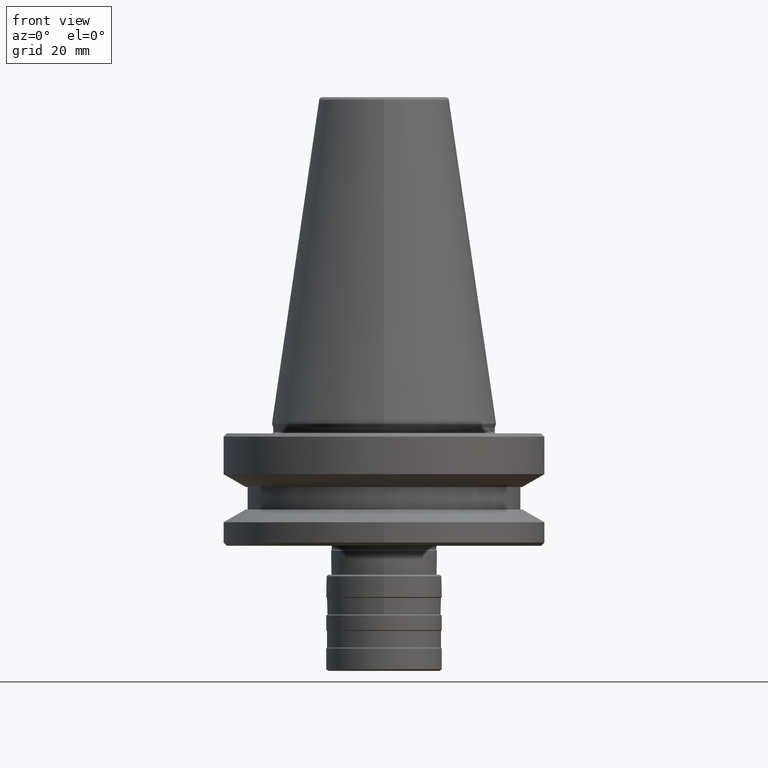
[diagram: clean part render]
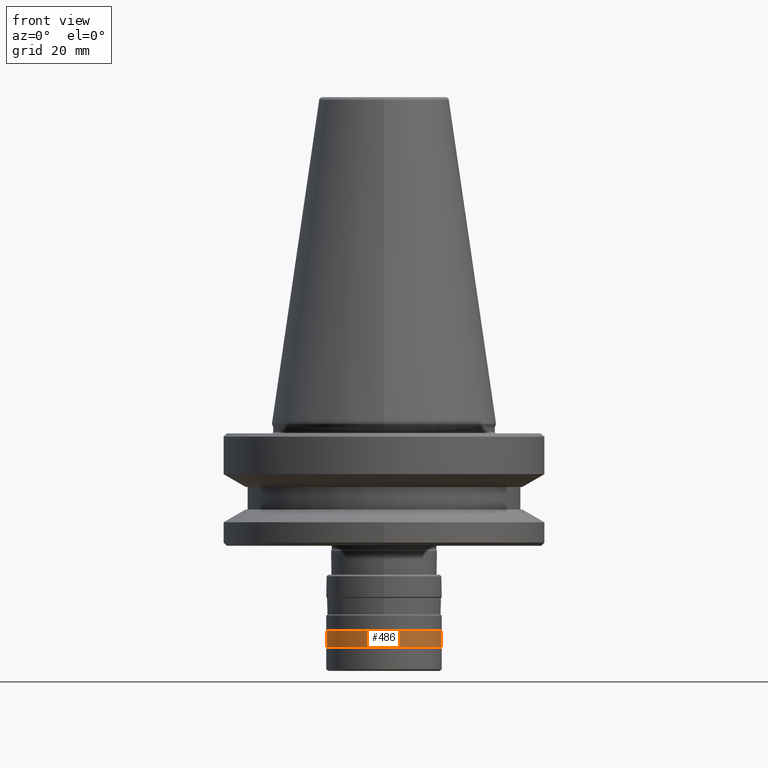
[diagram: same view with one face highlighted and labeled with its STEP entity id]
A machine part, front view. The second image highlights one B-rep face of the part: STEP entity #486.
In plain terms, the highlighted cylindrical surface (partial cylindrical patch) has radius 17.75 mm, axis along (0, 0, 1).
Its self-contained STEP definition (entity closure, byte-faithful):
#106 = VERTEX_POINT ( 'NONE', #2233 ) ;
#116 = CARTESIAN_POINT ( 'NONE',  ( 17.75000000000000700, 0.0000000000000000000, -64.54999999999999700 ) ) ;
#121 = VECTOR ( 'NONE', #1683, 1000.000000000000000 ) ;
#228 = DIRECTION ( 'NONE',  ( 1.000000000000000000, 0.0000000000000000000, 0.0000000000000000000 ) ) ;
#231 = DIRECTION ( 'NONE',  ( 0.0000000000000000000, 0.0000000000000000000, 1.000000000000000000 ) ) ;
#233 = CARTESIAN_POINT ( 'NONE',  ( 0.0000000000000000000, 0.0000000000000000000, -69.74999999999997200 ) ) ;
#239 = AXIS2_PLACEMENT_3D ( 'NONE', #233, #231, #228 ) ;
#440 = CIRCLE ( 'NONE', #239, 17.75000000000000700 ) ;
#468 = AXIS2_PLACEMENT_3D ( 'NONE', #692, #688, #686 ) ;
#486 = ADVANCED_FACE ( 'NONE', ( #799 ), #1071, .T. ) ;
#507 = ORIENTED_EDGE ( 'NONE', *, *, #589, .F. ) ;
#589 = EDGE_CURVE ( 'NONE', #106, #1134, #893, .T. ) ;
#686 = DIRECTION ( 'NONE',  ( 1.000000000000000000, 0.0000000000000000000, 0.0000000000000000000 ) ) ;
#688 = DIRECTION ( 'NONE',  ( 0.0000000000000000000, 0.0000000000000000000, 1.000000000000000000 ) ) ;
#692 = CARTESIAN_POINT ( 'NONE',  ( 0.0000000000000000000, 0.0000000000000000000, -64.54999999999999700 ) ) ;
#754 = EDGE_LOOP ( 'NONE', ( #1637, #1235, #1209, #507 ) ) ;
#799 = FACE_OUTER_BOUND ( 'NONE', #754, .T. ) ;
#886 = CARTESIAN_POINT ( 'NONE',  ( 0.0000000000000000000, 0.0000000000000000000, -69.75000000000000000 ) ) ;
#889 = DIRECTION ( 'NONE',  ( 0.0000000000000000000, 0.0000000000000000000, 1.000000000000000000 ) ) ;
#893 = CIRCLE ( 'NONE', #468, 17.75000000000000700 ) ;
#900 = DIRECTION ( 'NONE',  ( 1.000000000000000000, 0.0000000000000000000, 0.0000000000000000000 ) ) ;
#1055 = EDGE_CURVE ( 'NONE', #1945, #2108, #440, .T. ) ;
#1071 = CYLINDRICAL_SURFACE ( 'NONE', #1618, 17.75000000000000700 ) ;
#1098 = CARTESIAN_POINT ( 'NONE',  ( 17.75000000000000700, 0.0000000000000000000, -69.75000000000000000 ) ) ;
#1134 = VERTEX_POINT ( 'NONE', #116 ) ;
#1209 = ORIENTED_EDGE ( 'NONE', *, *, #1272, .T. ) ;
#1235 = ORIENTED_EDGE ( 'NONE', *, *, #1055, .T. ) ;
#1272 = EDGE_CURVE ( 'NONE', #2108, #1134, #1980, .T. ) ;
#1281 = VECTOR ( 'NONE', #2195, 1000.000000000000000 ) ;
#1438 = CARTESIAN_POINT ( 'NONE',  ( -17.75000000000000700, 0.0000000000000000000, -69.74999999999997200 ) ) ;
#1472 = LINE ( 'NONE', #1653, #121 ) ;
#1618 = AXIS2_PLACEMENT_3D ( 'NONE', #886, #889, #900 ) ;
#1637 = ORIENTED_EDGE ( 'NONE', *, *, #1792, .F. ) ;
#1653 = CARTESIAN_POINT ( 'NONE',  ( -17.75000000000000700, 2.173748068486552400E-015, -69.75000000000000000 ) ) ;
#1683 = DIRECTION ( 'NONE',  ( 0.0000000000000000000, 0.0000000000000000000, 1.000000000000000000 ) ) ;
#1792 = EDGE_CURVE ( 'NONE', #1945, #106, #1472, .T. ) ;
#1876 = CARTESIAN_POINT ( 'NONE',  ( 17.75000000000000700, 2.189056153475894700E-015, -69.74999999999997200 ) ) ;
#1945 = VERTEX_POINT ( 'NONE', #1438 ) ;
#1980 = LINE ( 'NONE', #1098, #1281 ) ;
#2108 = VERTEX_POINT ( 'NONE', #1876 ) ;
#2195 = DIRECTION ( 'NONE',  ( 0.0000000000000000000, 0.0000000000000000000, 1.000000000000000000 ) ) ;
#2233 = CARTESIAN_POINT ( 'NONE',  ( -17.75000000000000700, 2.173748068486552400E-015, -64.54999999999999700 ) ) ;